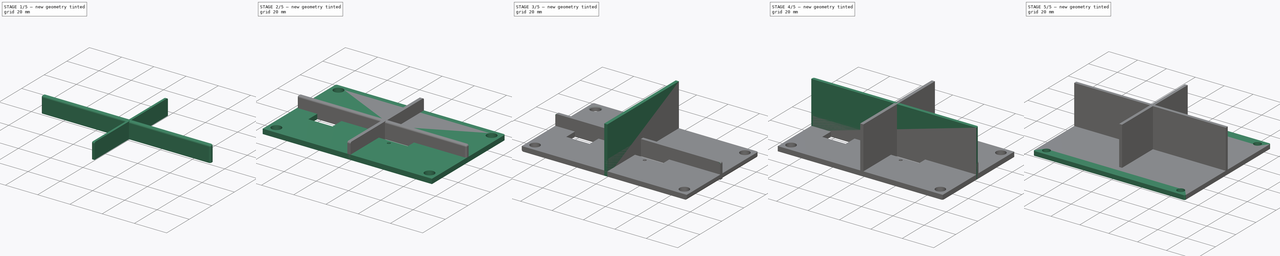
[diagram: build sequence overview — one tinted view per stage of 5, left to right]
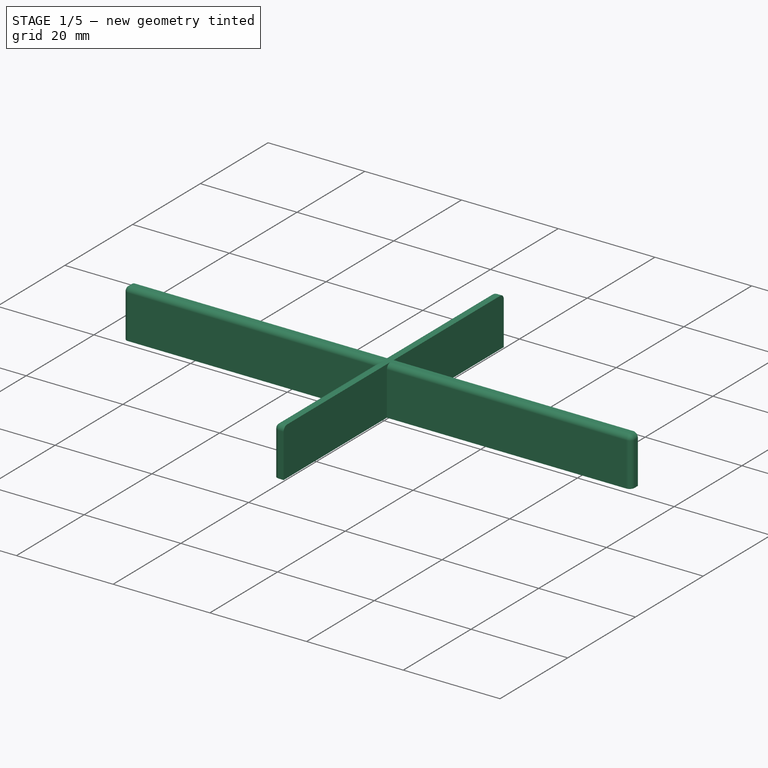
[diagram: stage 1 of 5 — iso view after this stage's code; geometry added in this stage tinted green]
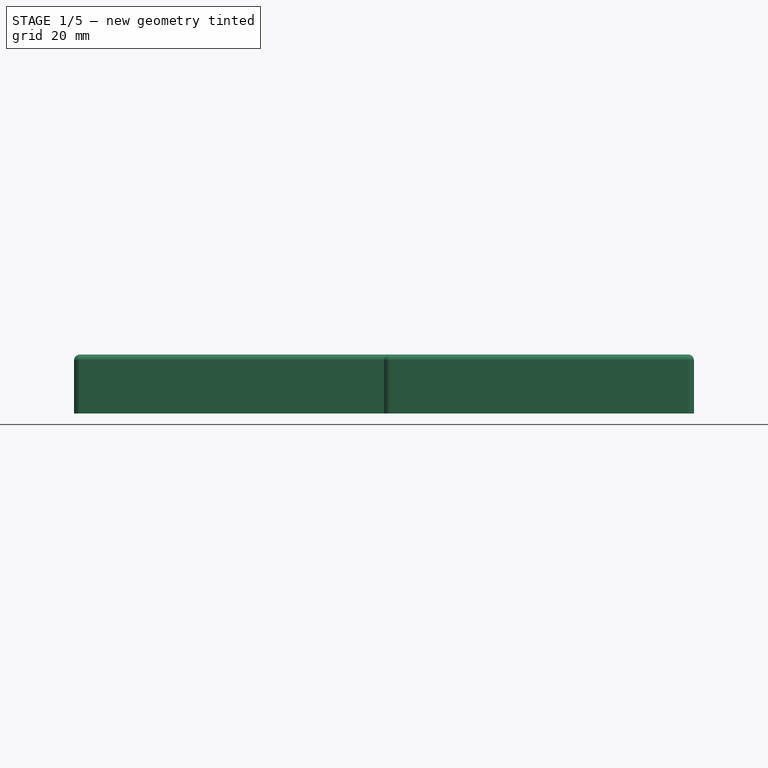
[diagram: stage 1 of 5 — front view after this stage's code; geometry added in this stage tinted green]
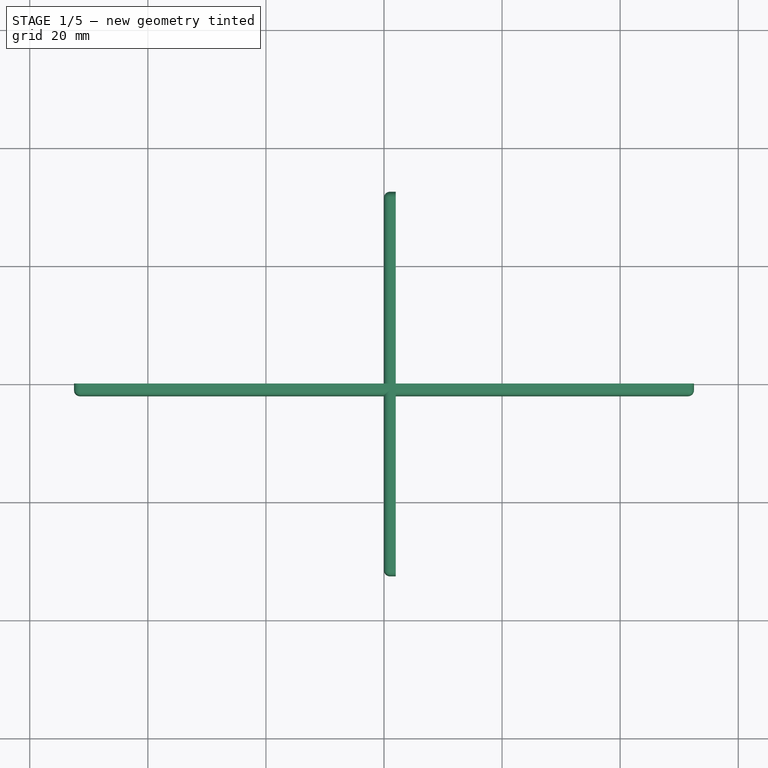
[diagram: stage 1 of 5 — top view after this stage's code; geometry added in this stage tinted green]
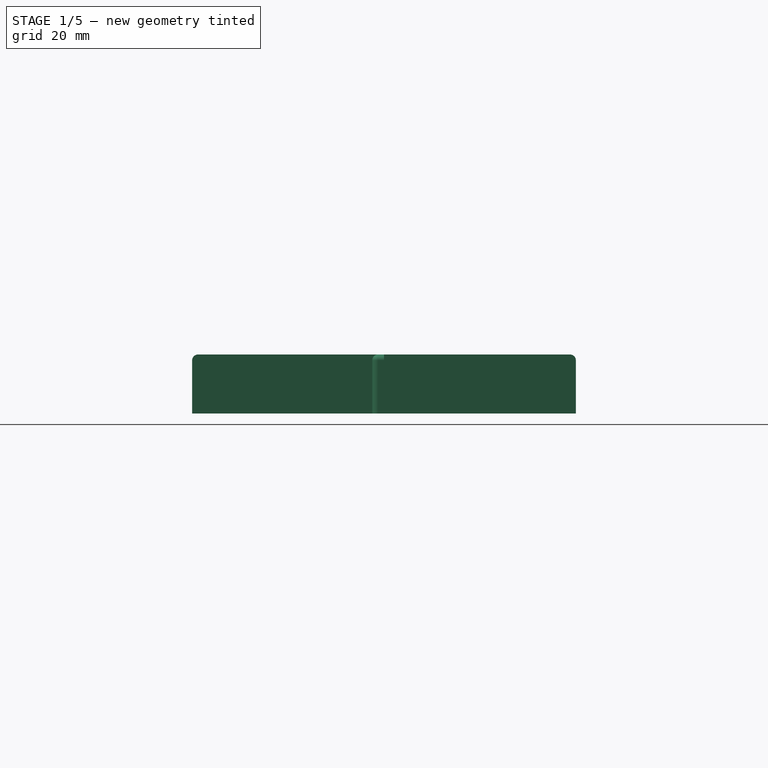
[diagram: stage 1 of 5 — right view after this stage's code; geometry added in this stage tinted green]
FCSTD DOCUMENT  (FreeCAD 0.19R24291 (Git))
Label: HW_2+
License: All rights reserved
LicenseURL: http://en.wikipedia.org/wiki/All_rights_reserved
objects: PartDesign::Fillet×28, Sketcher::SketchObject×10, PartDesign::Pad×10, PartDesign::Body×10
note: 96 computed .brp shape members not serialized (recipe doc carries the construction recipe); baked Part::Feature solids carry a one-line shape summary decoded from their .brp

FEATURE [Sketcher::SketchObject] Sketch007
  FullyConstrained = true
  MapMode = 5
  Placement = pos=(0,0,0) rot=(1,0,0;1.5708rad)
  sketch-geometry (4):
    g0: LineSegment StartX=-52.5 StartY=10 StartZ=0 EndX=52.5 EndY=10 EndZ=0
    g1: LineSegment StartX=52.5 StartY=10 StartZ=0 EndX=52.5 EndY=0 EndZ=0
    g2: LineSegment StartX=52.5 StartY=0 StartZ=0 EndX=-52.5 EndY=0 EndZ=0
    g3: LineSegment StartX=-52.5 StartY=0 StartZ=0 EndX=-52.5 EndY=10 EndZ=0
  constraints (11):
    c: Coincident(g0,g1)
    c: Coincident(g1,g2)
    c: Coincident(g2,g3)
    c: Coincident(g3,g0)
    c: Horizontal(g0)
    c: Vertical(g1)
    c: Vertical(g3)
    c: PointOnObject(g1,g-1)
    c: DistanceY(g3,g3) = 10
    c: DistanceX(g0,g0) = 105
    c: Symmetric(g1,g2,g-2)
FEATURE [PartDesign::Pad] Pad006
  Direction = (1,0,1)
  Length = 2
  Length2 = 100
  Placement = pos=(0,0,0) rot=(1,0,0;1.5708rad)
  Profile = -> Sketch007
  Type = 0
FEATURE [Sketcher::SketchObject] Sketch009
  FullyConstrained = true
  MapMode = 5
  Placement = pos=(0,0,0) rot=(0.57735,0.57735,0.57735;2.0944rad)
  Support = -> [YZ_Plane008]
  sketch-geometry (4):
    g0: LineSegment StartX=-32.5 StartY=10 StartZ=0 EndX=32.5 EndY=10 EndZ=0
    g1: LineSegment StartX=32.5 StartY=10 StartZ=0 EndX=32.5 EndY=0 EndZ=0
    g2: LineSegment StartX=32.5 StartY=0 StartZ=0 EndX=-32.5 EndY=-2e-16 EndZ=0
    g3: LineSegment StartX=-32.5 StartY=-2e-16 StartZ=0 EndX=-32.5 EndY=10 EndZ=0
  constraints (11):
    c: Coincident(g0,g1)
    c: Coincident(g1,g2)
    c: Coincident(g2,g3)
    c: Coincident(g3,g0)
    c: Horizontal(g0)
    c: Vertical(g1)
    c: Vertical(g3)
    c: DistanceX(g0,g0) = 65
    c: DistanceY(g1,g1) = 10
    c: Symmetric(g2,g1,g-2)
    c: PointOnObject(g1,g-1)
FEATURE [PartDesign::Pad] Pad008
  Direction = (1,1,1)
  Length = 2
  Length2 = 100
  Placement = pos=(0,0,0) rot=(0.57735,0.57735,0.57735;2.0944rad)
  Profile = -> Sketch009
  Type = 0
FEATURE [PartDesign::Body] Body003
  Group = -> [Sketch004,Pad003,Fillet004,Fillet005]
  Origin = -> Origin003
  Placement = pos=(50.5,0,0) rot=(0,0,1;0rad)
  Tip = -> Fillet005
FEATURE [PartDesign::Fillet] Fillet006
  Base = -> Pad006 [Edge7]
  BaseFeature = -> Pad006
  Placement = pos=(0,0,0) rot=(1,0,0;1.5708rad)
  Radius = 1
  SupportTransform = false
FEATURE [PartDesign::Fillet] Fillet013
  Base = -> Pad008 [Edge6]
  BaseFeature = -> Pad008
  Placement = pos=(0,0,0) rot=(0.57735,0.57735,0.57735;2.0944rad)
  Radius = 1
  SupportTransform = false
FEATURE [PartDesign::Fillet] Fillet019
  Base = -> Fillet006 [Edge13]
  BaseFeature = -> Fillet006
  Placement = pos=(0,0,0) rot=(1,0,0;1.5708rad)
  Radius = 1
  SupportTransform = false
FEATURE [PartDesign::Fillet] Fillet020
  Base = -> Fillet013 [Edge13]
  BaseFeature = -> Fillet013
  Placement = pos=(0,0,0) rot=(0.57735,0.57735,0.57735;2.0944rad)
  Radius = 1
  SupportTransform = false
FEATURE [PartDesign::Body] Body009
  Group = -> [Sketch010,Pad009,Fillet007,Fillet011,Fillet025]
  Origin = -> Origin009
  Placement = pos=(50.5,0,36) rot=(0,0,1;0rad)
  Tip = -> Fillet025
FEATURE [PartDesign::Fillet] Fillet026
  Base = -> Fillet019 [Edge1]
  BaseFeature = -> Fillet019
  Placement = pos=(0,0,0) rot=(1,0,0;1.5708rad)
  Radius = 1
  SupportTransform = false
FEATURE [PartDesign::Body] Body006
  Group = -> [Sketch007,Pad006,Fillet006,Fillet019,Fillet026]
  Origin = -> Origin006
  Placement = pos=(0,-30.5,36) rot=(0,0,1;0rad)
  Tip = -> Fillet026
FEATURE [PartDesign::Fillet] Fillet027
  Base = -> Fillet020 [Edge1]
  BaseFeature = -> Fillet020
  Placement = pos=(0,0,0) rot=(0.57735,0.57735,0.57735;2.0944rad)
  Radius = 1
  SupportTransform = false
FEATURE [PartDesign::Body] Body008
  Group = -> [Sketch009,Pad008,Fillet013,Fillet020,Fillet027]
  Origin = -> Origin008
  Placement = pos=(-52.5,0,36) rot=(0,0,1;0rad)
  Tip = -> Fillet027
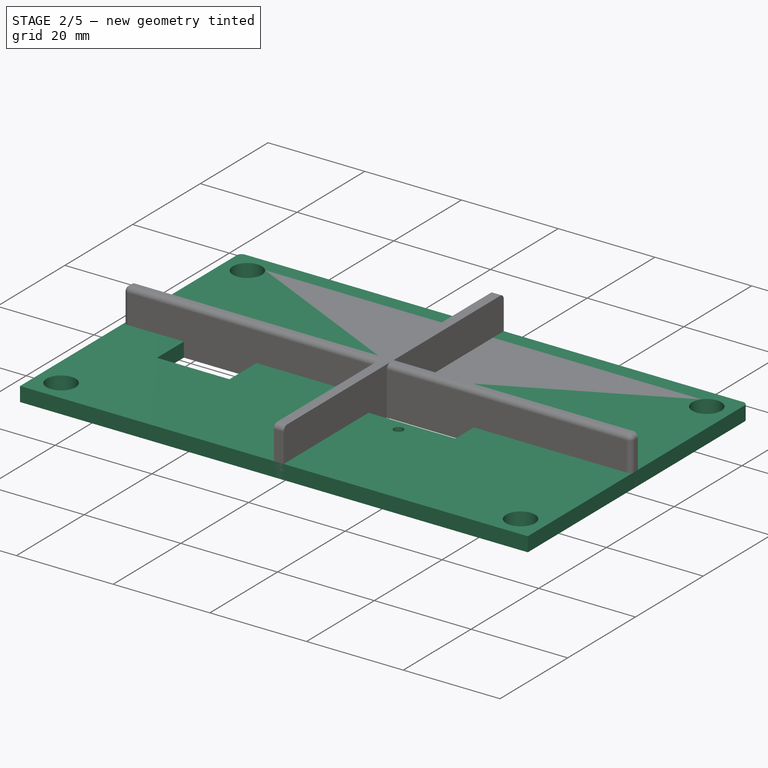
[diagram: stage 2 of 5 — iso view after this stage's code; geometry added in this stage tinted green]
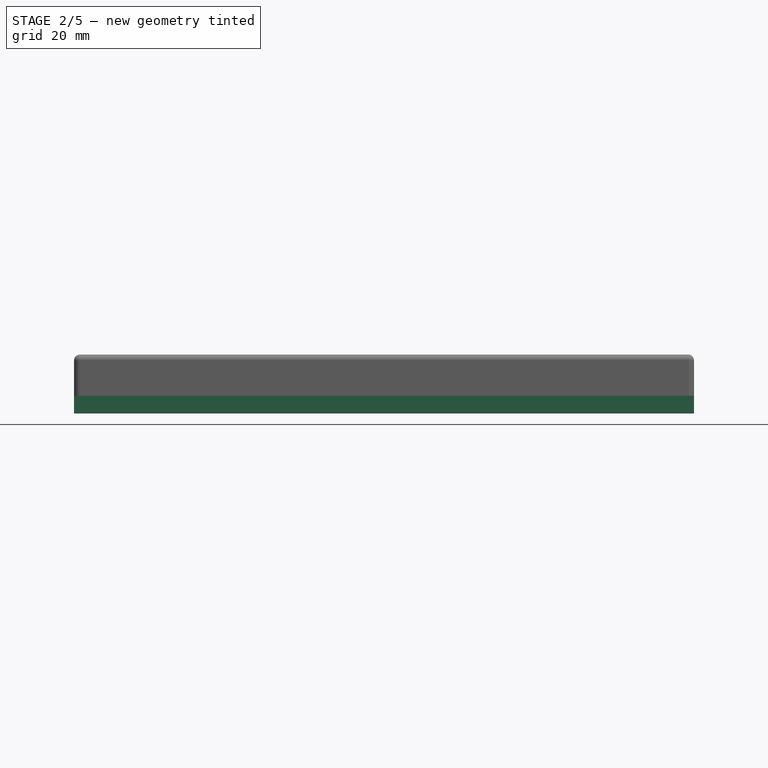
[diagram: stage 2 of 5 — front view after this stage's code; geometry added in this stage tinted green]
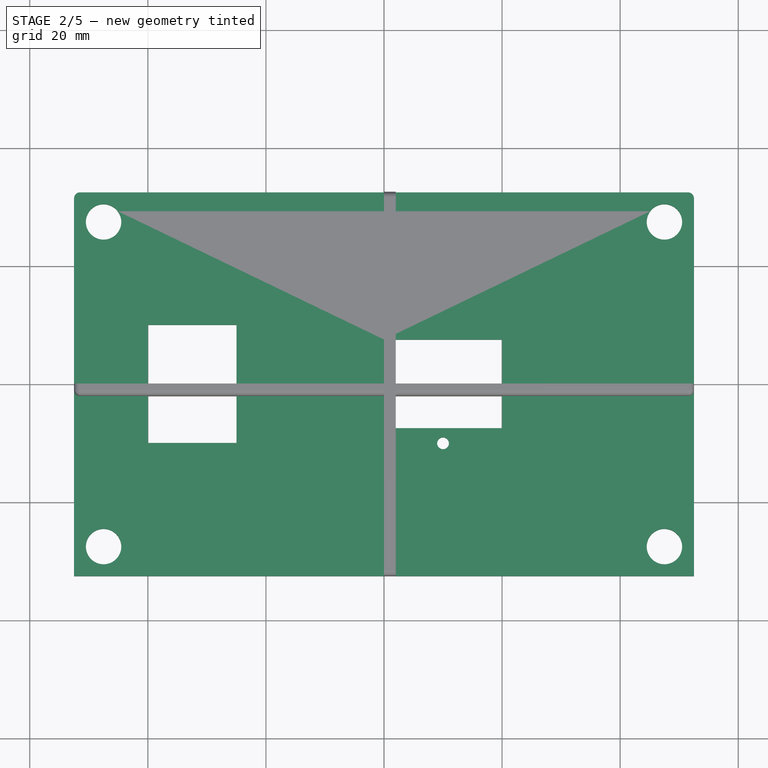
[diagram: stage 2 of 5 — top view after this stage's code; geometry added in this stage tinted green]
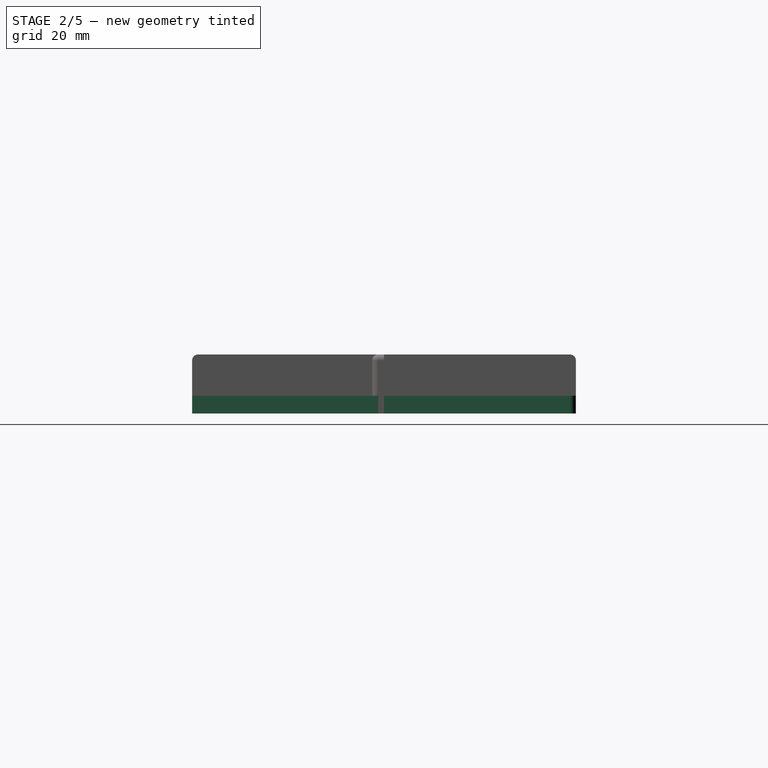
[diagram: stage 2 of 5 — right view after this stage's code; geometry added in this stage tinted green]
FEATURE [Sketcher::SketchObject] Sketch006
  FullyConstrained = false
  MapMode = 5
  Support = -> [XY_Plane005]
  sketch-geometry (17):
    g0: LineSegment StartX=-52.5 StartY=32.5 StartZ=0 EndX=52.5 EndY=32.5 EndZ=0
    g1: LineSegment StartX=52.5 StartY=32.5 StartZ=0 EndX=52.5 EndY=-32.5 EndZ=0
    g2: LineSegment StartX=52.5 StartY=-32.5 StartZ=0 EndX=-52.5 EndY=-32.5 EndZ=0
    g3: LineSegment StartX=-52.5 StartY=-32.5 StartZ=0 EndX=-52.5 EndY=32.5 EndZ=0
    g4: Circle CenterX=-47.5 CenterY=27.5 CenterZ=0 NormalX=0 NormalY=0 NormalZ=1 AngleXU=0 Radius=3
    g5: Circle CenterX=47.5 CenterY=27.5 CenterZ=0 NormalX=0 NormalY=0 NormalZ=1 AngleXU=0 Radius=3
    g6: Circle CenterX=-47.5 CenterY=-27.5 CenterZ=0 NormalX=0 NormalY=0 NormalZ=1 AngleXU=0 Radius=3
    g7: Circle CenterX=47.5 CenterY=-27.5 CenterZ=0 NormalX=0 NormalY=0 NormalZ=1 AngleXU=0 Radius=3
    g8: LineSegment StartX=-39.9893 StartY=10.0676 StartZ=0 EndX=-24.9893 EndY=10.0676 EndZ=0
    g9: LineSegment StartX=-24.9893 StartY=10.0676 StartZ=0 EndX=-24.9893 EndY=-9.93244 EndZ=0
    g10: LineSegment StartX=-24.9893 StartY=-9.93244 StartZ=0 EndX=-39.9893 EndY=-9.93244 EndZ=0
    g11: LineSegment StartX=-39.9893 StartY=-9.93244 StartZ=0 EndX=-39.9893 EndY=10.0676 EndZ=0
    g12: LineSegment StartX=0 StartY=7.56637 StartZ=0 EndX=20 EndY=7.56637 EndZ=0
    g13: LineSegment StartX=20 StartY=7.56637 StartZ=0 EndX=20 EndY=-7.43363 EndZ=0
    g14: LineSegment StartX=20 StartY=-7.43363 StartZ=0 EndX=0 EndY=-7.43363 EndZ=0
    g15: LineSegment StartX=0 StartY=-7.43363 StartZ=0 EndX=0 EndY=7.56637 EndZ=0
    g16: Circle CenterX=10 CenterY=-10 CenterZ=0 NormalX=0 NormalY=0 NormalZ=1 AngleXU=0 Radius=1
  constraints (45):
    c: Coincident(g0,g1)
    c: Coincident(g1,g2)
    c: Coincident(g2,g3)
    c: Coincident(g3,g0)
    c: Horizontal(g0)
    c: Vertical(g3)
    c: DistanceX(g0,g0) = 105
    c: DistanceY(g1,g1) = 65
    c: Symmetric(g1,g2,g-2)
    c: Symmetric(g0,g1,g-1)
    c: Radius(g4) = 3
    c: DistanceY(g4,g0) = 5
    c: DistanceX(g0,g4) = 5
    c: DistanceX(g5,g0) = 5
    c: DistanceY(g5,g0) = 5
    c: Radius(g5) = 3
    c: Radius(g6) = 3
    c: Radius(g7) = 3
    c: DistanceX(g2,g6) = 5
    c: DistanceX(g7,g1) = 5
    c: DistanceY(g1,g7) = 5
    c: DistanceY(g2,g6) = 5
    c: Coincident(g8,g9)
    c: Coincident(g9,g10)
    c: Coincident(g10,g11)
    c: Coincident(g11,g8)
    c: Horizontal(g8)
    c: Horizontal(g10)
    c: Vertical(g9)
    c: Vertical(g11)
    c: DistanceY(g9,g9) = 20
    c: DistanceX(g8,g8) = 15
    c: Coincident(g12,g13)
    c: Coincident(g13,g14)
    c: Coincident(g14,g15)
    c: Coincident(g15,g12)
    c: Horizontal(g12)
    c: Vertical(g13)
    c: Vertical(g15)
    c: PointOnObject(g12,g-2)
    c: DistanceY(g13,g13) = 15
    c: DistanceX(g12,g12) = 20
    c: Diameter(g16) = 2
    c: DistanceY(g16,g-1) = 10
    c: DistanceX(g-1,g16) = 10
FEATURE [PartDesign::Pad] Pad005
  Direction = (1,1,1)
  Length = 3
  Length2 = 100
  Profile = -> Sketch006
  Type = 0
FEATURE [Sketcher::SketchObject] Sketch010
  FullyConstrained = true
  MapMode = 5
  Placement = pos=(0,0,0) rot=(0.57735,0.57735,0.57735;2.0944rad)
  Support = -> [YZ_Plane009]
  sketch-geometry (4):
    g0: LineSegment StartX=-32.5 StartY=10 StartZ=0 EndX=32.5 EndY=10 EndZ=0
    g1: LineSegment StartX=32.5 StartY=10 StartZ=0 EndX=32.5 EndY=0 EndZ=0
    g2: LineSegment StartX=32.5 StartY=0 StartZ=0 EndX=-32.5 EndY=-2e-16 EndZ=0
    g3: LineSegment StartX=-32.5 StartY=-2e-16 StartZ=0 EndX=-32.5 EndY=10 EndZ=0
  constraints (11):
    c: Coincident(g0,g1)
    c: Coincident(g1,g2)
    c: Coincident(g2,g3)
    c: Coincident(g3,g0)
    c: Horizontal(g0)
    c: Vertical(g1)
    c: Vertical(g3)
    c: DistanceX(g0,g0) = 65
    c: DistanceY(g1,g1) = 10
    c: Symmetric(g2,g1,g-2)
    c: PointOnObject(g1,g-1)
FEATURE [PartDesign::Pad] Pad009
  Direction = (1,1,1)
  Length = 2
  Length2 = 100
  Placement = pos=(0,0,0) rot=(0.57735,0.57735,0.57735;2.0944rad)
  Profile = -> Sketch010
  Type = 0
FEATURE [PartDesign::Fillet] Fillet007
  Base = -> Pad009 [Edge12]
  BaseFeature = -> Pad009
  Placement = pos=(0,0,0) rot=(0.57735,0.57735,0.57735;2.0944rad)
  Radius = 1
  SupportTransform = false
FEATURE [PartDesign::Fillet] Fillet010
  Base = -> Pad005 [Edge2]
  BaseFeature = -> Pad005
  Radius = 1
  SupportTransform = false
FEATURE [PartDesign::Fillet] Fillet011
  Base = -> Fillet007 [Edge13]
  BaseFeature = -> Fillet007
  Placement = pos=(0,0,0) rot=(0.57735,0.57735,0.57735;2.0944rad)
  Radius = 1
  SupportTransform = false
FEATURE [PartDesign::Fillet] Fillet015
  Base = -> Fillet010 [Edge3]
  BaseFeature = -> Fillet010
  Radius = 1
  SupportTransform = false
FEATURE [PartDesign::Body] Body005  label="ฝา"
  Group = -> [Sketch006,Pad005,Fillet008,Fillet010,Fillet015,Fillet018,Fillet022,Fillet024]
  Origin = -> Origin005
  Placement = pos=(0,0,43) rot=(0,0,1;0rad)
  Tip = -> Fillet024
FEATURE [PartDesign::Fillet] Fillet025
  Base = -> Fillet011 [Edge1]
  BaseFeature = -> Fillet011
  Placement = pos=(0,0,0) rot=(0.57735,0.57735,0.57735;2.0944rad)
  Radius = 1
  SupportTransform = false
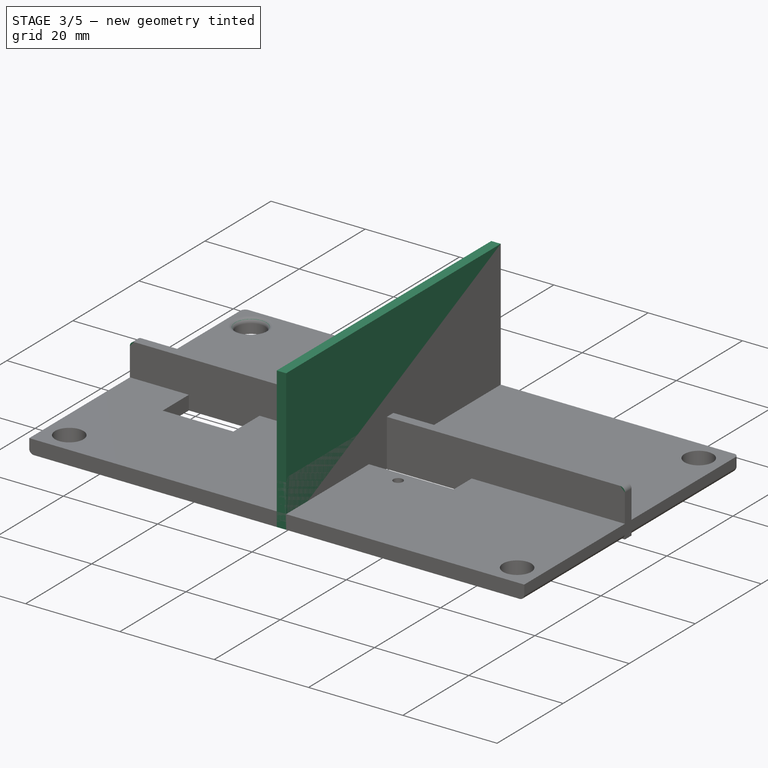
[diagram: stage 3 of 5 — iso view after this stage's code; geometry added in this stage tinted green]
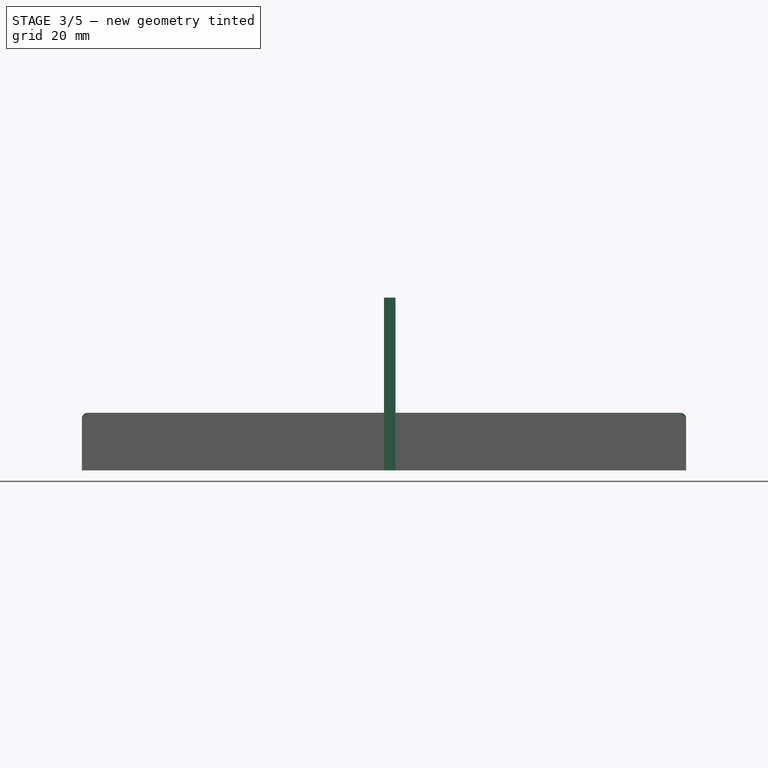
[diagram: stage 3 of 5 — front view after this stage's code; geometry added in this stage tinted green]
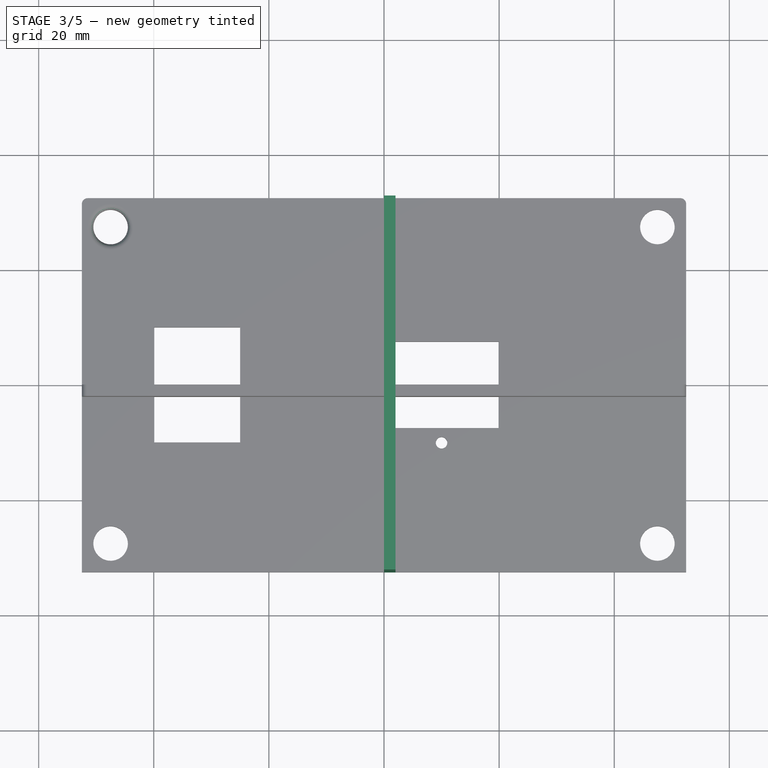
[diagram: stage 3 of 5 — top view after this stage's code; geometry added in this stage tinted green]
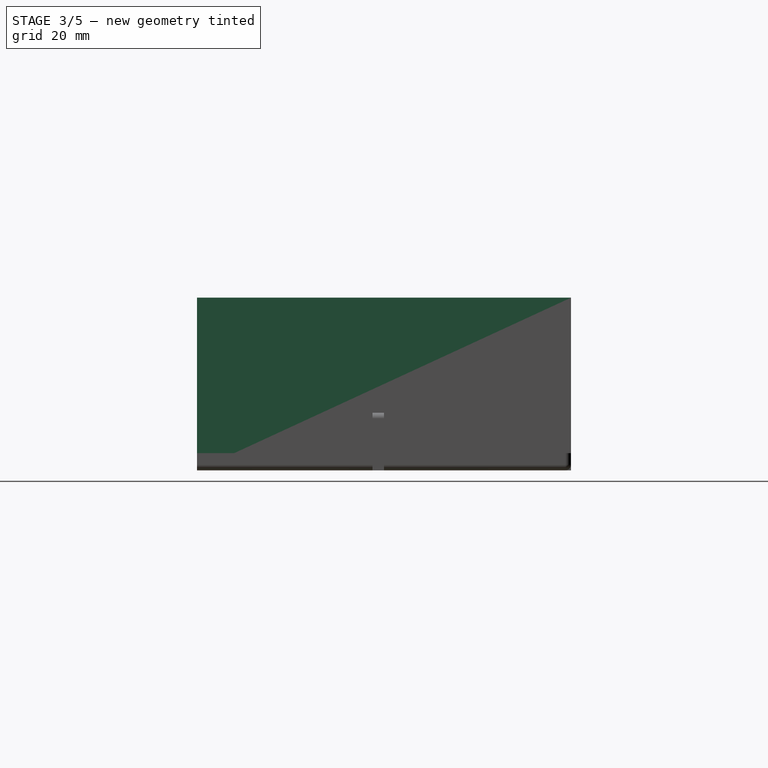
[diagram: stage 3 of 5 — right view after this stage's code; geometry added in this stage tinted green]
FEATURE [Sketcher::SketchObject] Sketch005
  FullyConstrained = true
  MapMode = 5
  Placement = pos=(0,0,0) rot=(0.57735,0.57735,0.57735;2.0944rad)
  Support = -> [YZ_Plane004]
  sketch-geometry (4):
    g0: LineSegment StartX=-32.5 StartY=30 StartZ=0 EndX=32.5 EndY=30 EndZ=0
    g1: LineSegment StartX=32.5 StartY=30 StartZ=0 EndX=32.5 EndY=0 EndZ=0
    g2: LineSegment StartX=32.5 StartY=0 StartZ=0 EndX=-32.5 EndY=1e-16 EndZ=0
    g3: LineSegment StartX=-32.5 StartY=1e-16 StartZ=0 EndX=-32.5 EndY=30 EndZ=0
  constraints (11):
    c: Coincident(g0,g1)
    c: Coincident(g1,g2)
    c: Coincident(g2,g3)
    c: Coincident(g3,g0)
    c: Horizontal(g0)
    c: Vertical(g1)
    c: Vertical(g3)
    c: DistanceX(g0,g0) = 65
    c: DistanceY(g1,g1) = 30
    c: Symmetric(g2,g1,g-2)
    c: PointOnObject(g1,g-1)
FEATURE [PartDesign::Pad] Pad004
  Direction = (1,1,1)
  Length = 2
  Length2 = 100
  Placement = pos=(0,0,0) rot=(0.57735,0.57735,0.57735;2.0944rad)
  Profile = -> Sketch005
  Type = 0
FEATURE [Sketcher::SketchObject] Sketch008
  FullyConstrained = true
  MapMode = 5
  Placement = pos=(0,0,0) rot=(1,0,0;1.5708rad)
  sketch-geometry (4):
    g0: LineSegment StartX=-52.5 StartY=10 StartZ=0 EndX=52.5 EndY=10 EndZ=0
    g1: LineSegment StartX=52.5 StartY=10 StartZ=0 EndX=52.5 EndY=0 EndZ=0
    g2: LineSegment StartX=52.5 StartY=0 StartZ=0 EndX=-52.5 EndY=0 EndZ=0
    g3: LineSegment StartX=-52.5 StartY=0 StartZ=0 EndX=-52.5 EndY=10 EndZ=0
  constraints (11):
    c: Coincident(g0,g1)
    c: Coincident(g1,g2)
    c: Coincident(g2,g3)
    c: Coincident(g3,g0)
    c: Horizontal(g0)
    c: Vertical(g1)
    c: Vertical(g3)
    c: PointOnObject(g1,g-1)
    c: DistanceY(g3,g3) = 10
    c: DistanceX(g0,g0) = 105
    c: Symmetric(g1,g2,g-2)
FEATURE [PartDesign::Pad] Pad007
  Direction = (1,0,1)
  Length = 2
  Length2 = 100
  Placement = pos=(0,0,0) rot=(1,0,0;1.5708rad)
  Profile = -> Sketch008
  Type = 0
FEATURE [PartDesign::Fillet] Fillet012
  Base = -> Pad007 [Edge6]
  BaseFeature = -> Pad007
  Placement = pos=(0,0,0) rot=(1,0,0;1.5708rad)
  Radius = 1
  SupportTransform = false
FEATURE [PartDesign::Fillet] Fillet014
  Base = -> Fillet012 [Edge13]
  BaseFeature = -> Fillet012
  Placement = pos=(0,0,0) rot=(1,0,0;1.5708rad)
  Radius = 1
  SupportTransform = false
FEATURE [PartDesign::Body] Body002
  Group = -> [Sketch003,Pad002,Fillet009,Fillet017]
  Origin = -> Origin002
  Placement = pos=(0,32.5,0) rot=(0,0,1;0rad)
  Tip = -> Fillet017
FEATURE [PartDesign::Fillet] Fillet018
  Base = -> Fillet015 [Edge41]
  BaseFeature = -> Fillet015
  Radius = 1
  SupportTransform = false
FEATURE [PartDesign::Body] Body004
  Group = -> [Sketch005,Pad004,Fillet016,Fillet021]
  Origin = -> Origin004
  Placement = pos=(-52.5,0,0) rot=(0,0,1;0rad)
  Tip = -> Fillet021
FEATURE [PartDesign::Fillet] Fillet022
  Base = -> Fillet018 [Edge27]
  BaseFeature = -> Fillet018
  Radius = 1
  SupportTransform = false
FEATURE [PartDesign::Fillet] Fillet023
  Base = -> Fillet014 [Edge1]
  BaseFeature = -> Fillet014
  Placement = pos=(0,0,0) rot=(1,0,0;1.5708rad)
  Radius = 1
  SupportTransform = false
FEATURE [PartDesign::Body] Body007
  Group = -> [Sketch008,Pad007,Fillet012,Fillet014,Fillet023]
  Origin = -> Origin007
  Placement = pos=(0,32.5,36) rot=(0,0,1;0rad)
  Tip = -> Fillet023
FEATURE [PartDesign::Fillet] Fillet024
  Base = -> Fillet022 [Edge36]
  BaseFeature = -> Fillet022
  Radius = 1
  SupportTransform = false
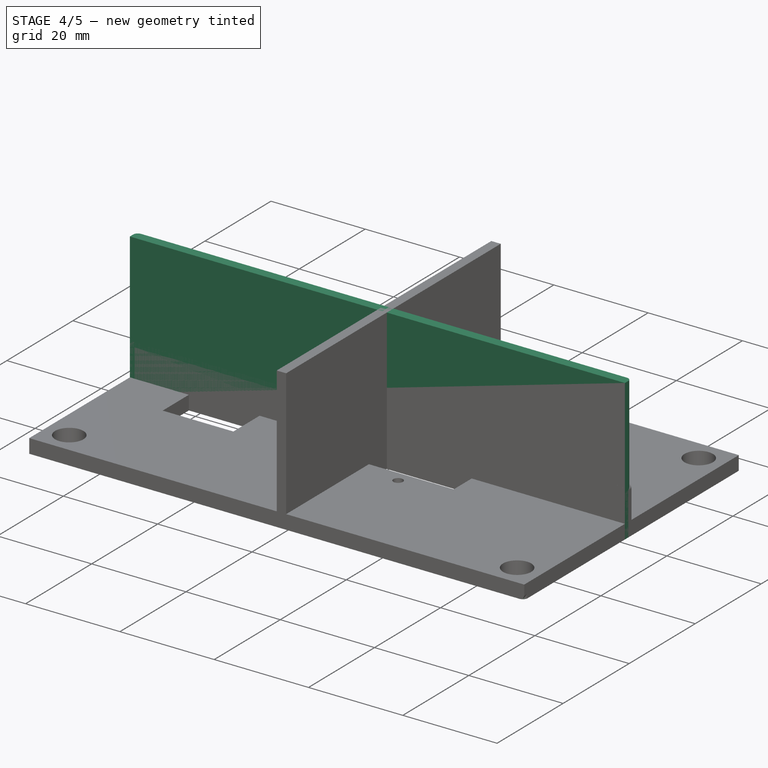
[diagram: stage 4 of 5 — iso view after this stage's code; geometry added in this stage tinted green]
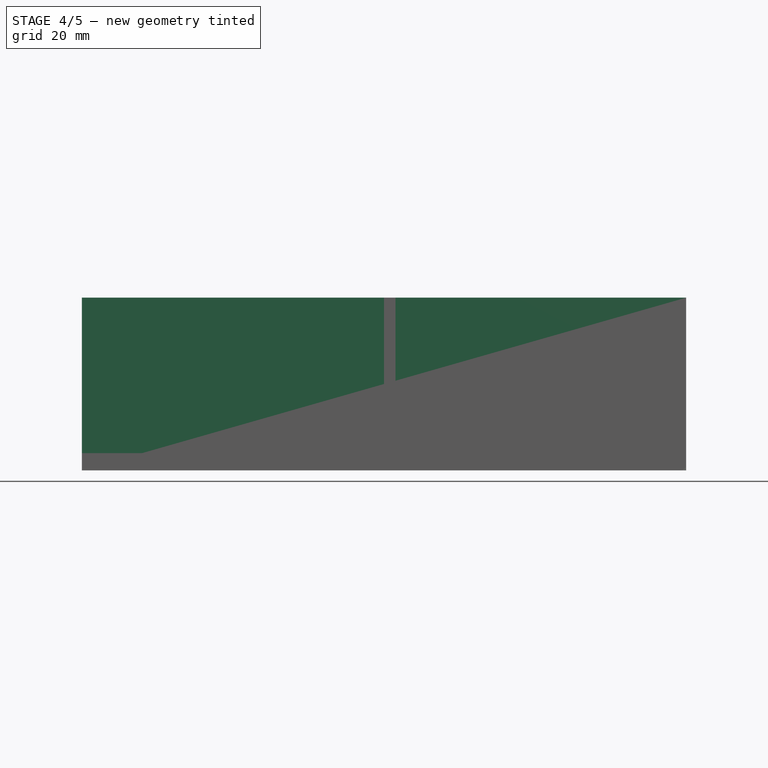
[diagram: stage 4 of 5 — front view after this stage's code; geometry added in this stage tinted green]
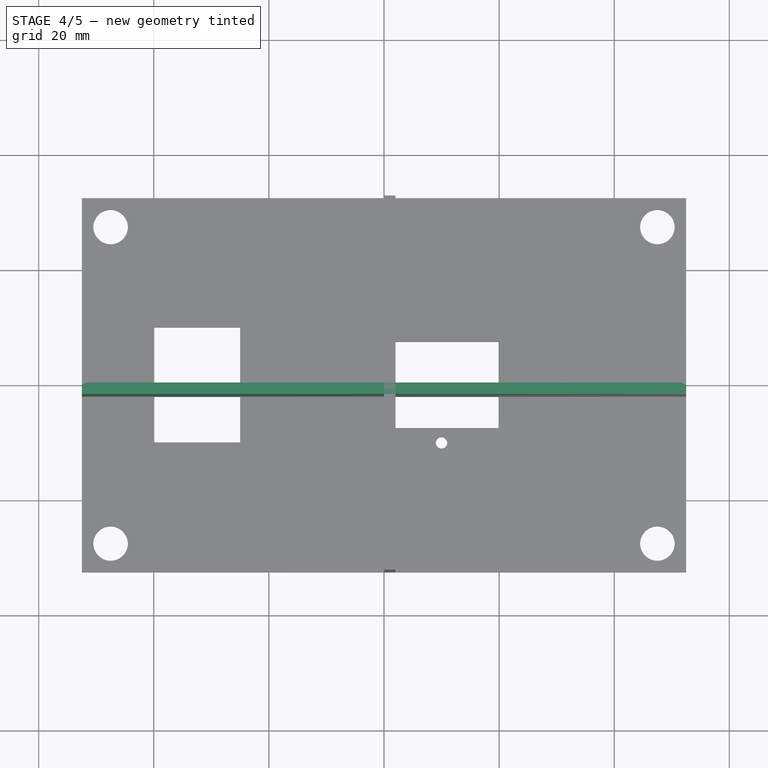
[diagram: stage 4 of 5 — top view after this stage's code; geometry added in this stage tinted green]
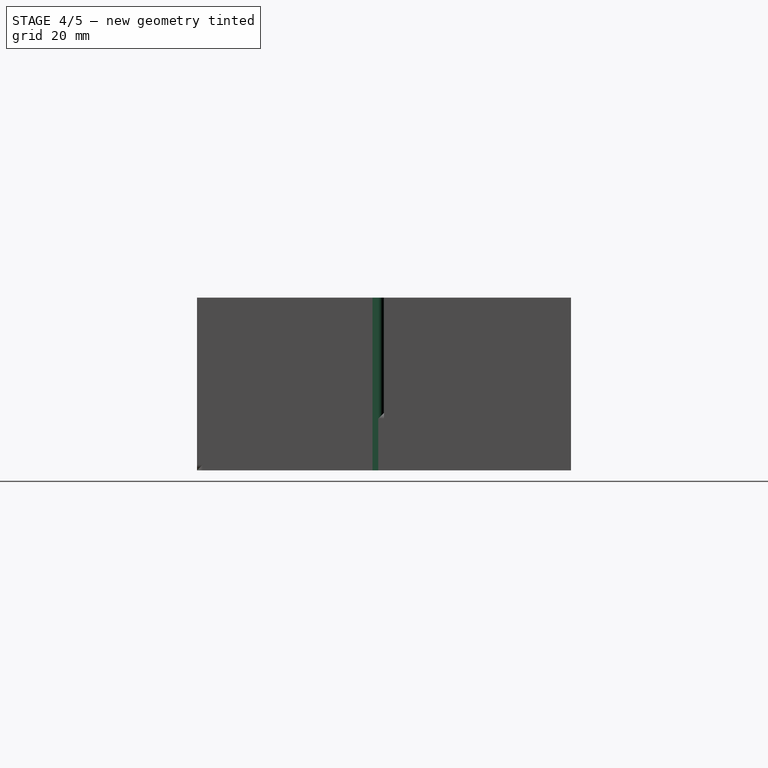
[diagram: stage 4 of 5 — right view after this stage's code; geometry added in this stage tinted green]
FEATURE [Sketcher::SketchObject] Sketch003
  FullyConstrained = true
  MapMode = 5
  Placement = pos=(0,0,0) rot=(1,0,0;1.5708rad)
  sketch-geometry (4):
    g0: LineSegment StartX=-52.5 StartY=30 StartZ=0 EndX=52.5 EndY=30 EndZ=0
    g1: LineSegment StartX=52.5 StartY=30 StartZ=0 EndX=52.5 EndY=0 EndZ=0
    g2: LineSegment StartX=52.5 StartY=0 StartZ=0 EndX=-52.5 EndY=0 EndZ=0
    g3: LineSegment StartX=-52.5 StartY=0 StartZ=0 EndX=-52.5 EndY=30 EndZ=0
  constraints (11):
    c: Coincident(g0,g1)
    c: Coincident(g1,g2)
    c: Coincident(g2,g3)
    c: Coincident(g3,g0)
    c: Horizontal(g0)
    c: Vertical(g1)
    c: Vertical(g3)
    c: PointOnObject(g1,g-1)
    c: DistanceY(g3,g3) = 30
    c: DistanceX(g0,g0) = 105
    c: Symmetric(g1,g2,g-2)
FEATURE [PartDesign::Pad] Pad002
  Direction = (1,0,1)
  Length = 2
  Length2 = 100
  Placement = pos=(0,0,0) rot=(1,0,0;1.5708rad)
  Profile = -> Sketch003
  Type = 0
FEATURE [Sketcher::SketchObject] Sketch004
  FullyConstrained = false
  MapMode = 5
  Placement = pos=(0,0,0) rot=(0.57735,0.57735,0.57735;2.0944rad)
  Support = -> [YZ_Plane003]
  sketch-geometry (9):
    g0: LineSegment StartX=-32.5 StartY=30 StartZ=0 EndX=32.5 EndY=30 EndZ=0
    g1: LineSegment StartX=32.5 StartY=30 StartZ=0 EndX=32.5 EndY=0 EndZ=0
    g2: LineSegment StartX=32.5 StartY=0 StartZ=0 EndX=-32.5 EndY=0 EndZ=0
    g3: LineSegment StartX=-32.5 StartY=0 StartZ=0 EndX=-32.5 EndY=30 EndZ=0
    g4: Circle CenterX=-14.5 CenterY=11 CenterZ=0 NormalX=0 NormalY=0 NormalZ=1 AngleXU=0 Radius=2.5
    g5: LineSegment StartX=-2.0102 StartY=14.4748 StartZ=0 EndX=9.9898 EndY=14.4748 EndZ=0
    g6: LineSegment StartX=9.9898 StartY=14.4748 StartZ=0 EndX=9.9898 EndY=9.97479 EndZ=0
    g7: LineSegment StartX=9.9898 StartY=9.97479 StartZ=0 EndX=-2.0102 EndY=9.97479 EndZ=0
    g8: LineSegment StartX=-2.0102 StartY=9.97479 StartZ=0 EndX=-2.0102 EndY=14.4748 EndZ=0
  constraints (24):
    c: Coincident(g0,g1)
    c: Coincident(g1,g2)
    c: Coincident(g2,g3)
    c: Coincident(g3,g0)
    c: Horizontal(g0)
    c: Vertical(g1)
    c: Vertical(g3)
    c: DistanceX(g0,g0) = 65
    c: DistanceY(g1,g1) = 30
    c: Symmetric(g2,g1,g-2)
    c: PointOnObject(g1,g-1)
    c: Diameter(g4) = 5
    c: DistanceX(g2,g4) = 18
    c: DistanceY(g2,g4) = 11
    c: Coincident(g5,g6)
    c: Coincident(g6,g7)
    c: Coincident(g7,g8)
    c: Coincident(g8,g5)
    c: Horizontal(g5)
    c: Horizontal(g7)
    c: Vertical(g6)
    c: Vertical(g8)
    c: DistanceX(g5,g5) = 12
    c: DistanceY(g8,g8) = 4.5
FEATURE [PartDesign::Pad] Pad003
  Direction = (1,1,1)
  Length = 2
  Length2 = 100
  Placement = pos=(0,0,0) rot=(0.57735,0.57735,0.57735;2.0944rad)
  Profile = -> Sketch004
  Type = 0
FEATURE [PartDesign::Fillet] Fillet008
  Base = -> Pad005 [Edge5]
  BaseFeature = -> Pad005
  Radius = 1
  SupportTransform = false
FEATURE [PartDesign::Fillet] Fillet009
  Base = -> Pad002 [Edge6]
  BaseFeature = -> Pad002
  Placement = pos=(0,0,0) rot=(1,0,0;1.5708rad)
  Radius = 1
  SupportTransform = false
FEATURE [PartDesign::Fillet] Fillet016
  Base = -> Pad004 [Edge6]
  BaseFeature = -> Pad004
  Placement = pos=(0,0,0) rot=(0.57735,0.57735,0.57735;2.0944rad)
  Radius = 1
  SupportTransform = false
FEATURE [PartDesign::Fillet] Fillet017
  Base = -> Fillet009 [Edge13]
  BaseFeature = -> Fillet009
  Placement = pos=(0,0,0) rot=(1,0,0;1.5708rad)
  Radius = 1
  SupportTransform = false
FEATURE [PartDesign::Fillet] Fillet021
  Base = -> Fillet016 [Edge13]
  BaseFeature = -> Fillet016
  Placement = pos=(0,0,0) rot=(0.57735,0.57735,0.57735;2.0944rad)
  Radius = 1
  SupportTransform = false
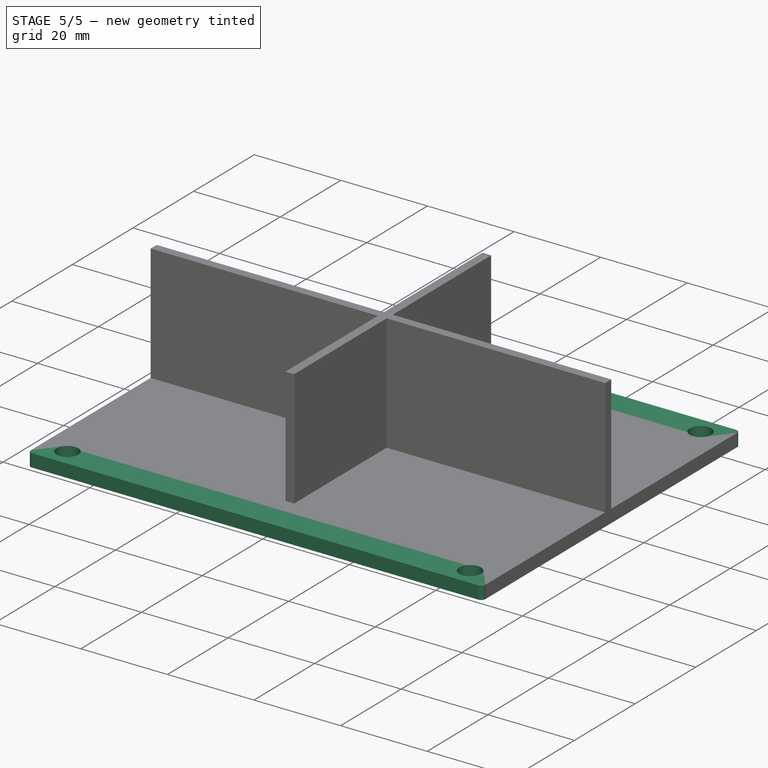
[diagram: stage 5 of 5 — iso view after this stage's code; geometry added in this stage tinted green]
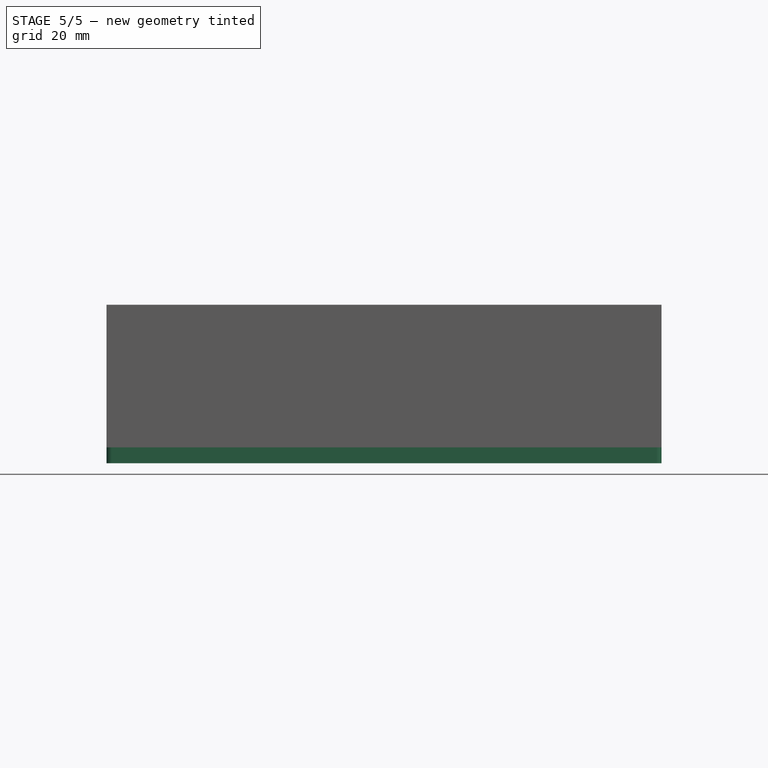
[diagram: stage 5 of 5 — front view after this stage's code; geometry added in this stage tinted green]
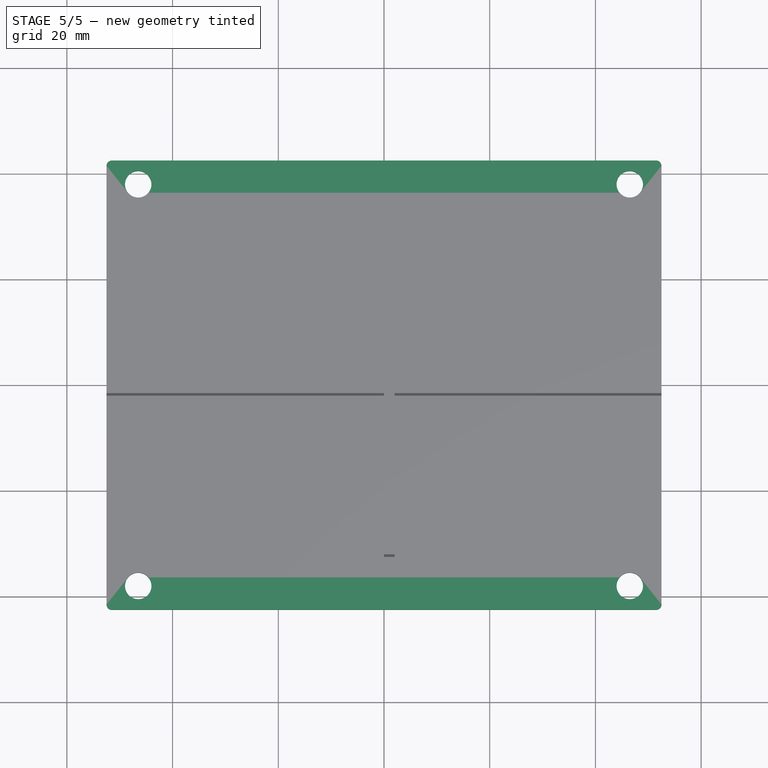
[diagram: stage 5 of 5 — top view after this stage's code; geometry added in this stage tinted green]
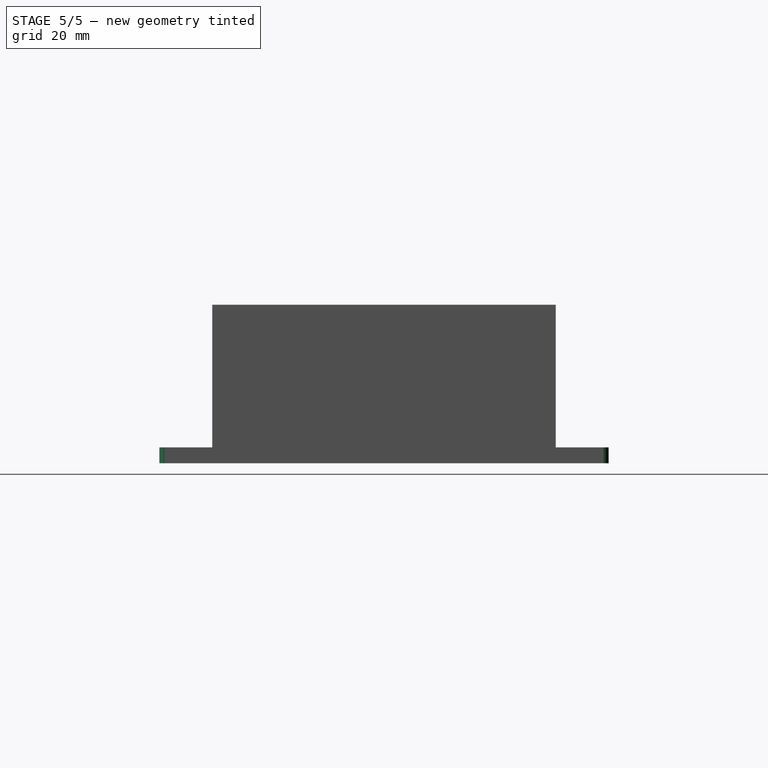
[diagram: stage 5 of 5 — right view after this stage's code; geometry added in this stage tinted green]
FEATURE [Sketcher::SketchObject] Sketch
  FullyConstrained = true
  MapMode = 5
  Support = -> [XY_Plane]
  sketch-geometry (8):
    g0: LineSegment StartX=-52.5 StartY=42.5 StartZ=0 EndX=52.5 EndY=42.5 EndZ=0
    g1: LineSegment StartX=52.5 StartY=42.5 StartZ=0 EndX=52.5 EndY=-42.5 EndZ=0
    g2: LineSegment StartX=52.5 StartY=-42.5 StartZ=0 EndX=-52.5 EndY=-42.5 EndZ=0
    g3: LineSegment StartX=-52.5 StartY=-42.5 StartZ=0 EndX=-52.5 EndY=42.5 EndZ=0
    g4: Circle CenterX=-46.5 CenterY=38 CenterZ=0 NormalX=0 NormalY=0 NormalZ=1 AngleXU=0 Radius=2.5
    g5: Circle CenterX=46.5 CenterY=38 CenterZ=0 NormalX=0 NormalY=0 NormalZ=1 AngleXU=0 Radius=2.5
    g6: Circle CenterX=-46.5 CenterY=-38 CenterZ=0 NormalX=0 NormalY=0 NormalZ=1 AngleXU=0 Radius=2.5
    g7: Circle CenterX=46.5 CenterY=-38 CenterZ=0 NormalX=0 NormalY=0 NormalZ=1 AngleXU=0 Radius=2.5
  constraints (22):
    c: Coincident(g0,g1)
    c: Coincident(g1,g2)
    c: Coincident(g2,g3)
    c: Coincident(g3,g0)
    c: Horizontal(g0)
    c: Vertical(g3)
    c: DistanceX(g0,g0) = 105
    c: DistanceY(g1,g1) = 85
    c: Symmetric(g2,g1,g-2)
    c: Symmetric(g0,g1,g-1)
    c: Diameter(g4) = 5
    c: DistanceX(g0,g4) = 6
    c: Equal(g4,g5)
    c: Equal(g5,g6)
    c: Equal(g6,g7)
    c: DistanceY(g4,g0) = 4.5
    c: DistanceX(g2,g6) = 6
    c: DistanceY(g2,g6) = 4.5
    c: DistanceX(g7,g1) = 6
    c: DistanceY(g1,g7) = 4.5
    c: DistanceY(g5,g0) = 4.5
    c: DistanceX(g5,g0) = 6
FEATURE [PartDesign::Pad] Pad
  Direction = (1,1,1)
  Length = 3
  Length2 = 100
  Profile = -> Sketch
  Type = 0
FEATURE [Sketcher::SketchObject] Sketch002
  FullyConstrained = true
  MapMode = 5
  Placement = pos=(0,0,0) rot=(1,0,0;1.5708rad)
  sketch-geometry (4):
    g0: LineSegment StartX=-52.5 StartY=30 StartZ=0 EndX=52.5 EndY=30 EndZ=0
    g1: LineSegment StartX=52.5 StartY=30 StartZ=0 EndX=52.5 EndY=0 EndZ=0
    g2: LineSegment StartX=52.5 StartY=0 StartZ=0 EndX=-52.5 EndY=0 EndZ=0
    g3: LineSegment StartX=-52.5 StartY=0 StartZ=0 EndX=-52.5 EndY=30 EndZ=0
  constraints (11):
    c: Coincident(g0,g1)
    c: Coincident(g1,g2)
    c: Coincident(g2,g3)
    c: Coincident(g3,g0)
    c: Horizontal(g0)
    c: Vertical(g1)
    c: Vertical(g3)
    c: PointOnObject(g1,g-1)
    c: DistanceY(g3,g3) = 30
    c: DistanceX(g0,g0) = 105
    c: Symmetric(g1,g2,g-2)
FEATURE [PartDesign::Pad] Pad001
  Direction = (1,0,1)
  Length = 2
  Length2 = 100
  Placement = pos=(0,0,0) rot=(1,0,0;1.5708rad)
  Profile = -> Sketch002
  Type = 0
FEATURE [PartDesign::Fillet] Fillet
  Base = -> Pad [Edge2]
  BaseFeature = -> Pad
  Radius = 1
  SupportTransform = false
FEATURE [PartDesign::Fillet] Fillet001
  Base = -> Fillet [Edge3,Edge23,Edge15]
  BaseFeature = -> Fillet
  Radius = 1
  SupportTransform = false
FEATURE [PartDesign::Body] Body
  Group = -> [Sketch,Pad,Fillet,Fillet001]
  Origin = -> Origin
  Tip = -> Fillet001
FEATURE [PartDesign::Fillet] Fillet002
  Base = -> Pad001 [Edge12]
  BaseFeature = -> Pad001
  Placement = pos=(0,0,0) rot=(1,0,0;1.5708rad)
  Radius = 1
  SupportTransform = false
FEATURE [PartDesign::Fillet] Fillet003
  Base = -> Fillet002 [Edge13]
  BaseFeature = -> Fillet002
  Placement = pos=(0,0,0) rot=(1,0,0;1.5708rad)
  Radius = 1
  SupportTransform = false
FEATURE [PartDesign::Body] Body001
  Group = -> [Sketch002,Pad001,Fillet002,Fillet003]
  Origin = -> Origin001
  Placement = pos=(0,-30.5,0) rot=(0,0,1;0rad)
  Tip = -> Fillet003
FEATURE [PartDesign::Fillet] Fillet004
  Base = -> Pad003 [Edge7]
  BaseFeature = -> Pad003
  Placement = pos=(0,0,0) rot=(0.57735,0.57735,0.57735;2.0944rad)
  Radius = 1
  SupportTransform = false
FEATURE [PartDesign::Fillet] Fillet005
  Base = -> Fillet004 [Edge18]
  BaseFeature = -> Fillet004
  Placement = pos=(0,0,0) rot=(0.57735,0.57735,0.57735;2.0944rad)
  Radius = 1
  SupportTransform = false
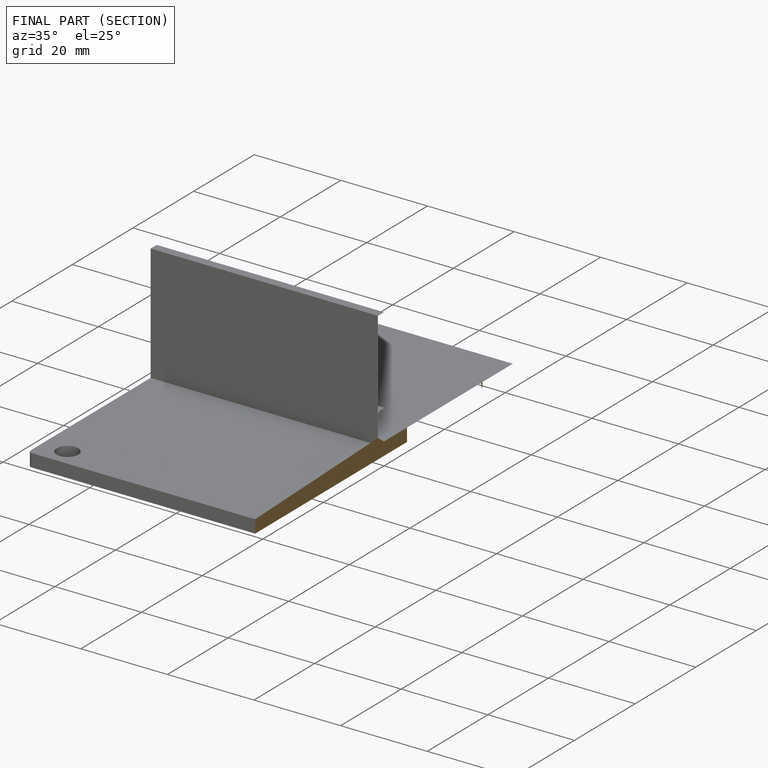
[diagram: finished part — half-section view (interior)]
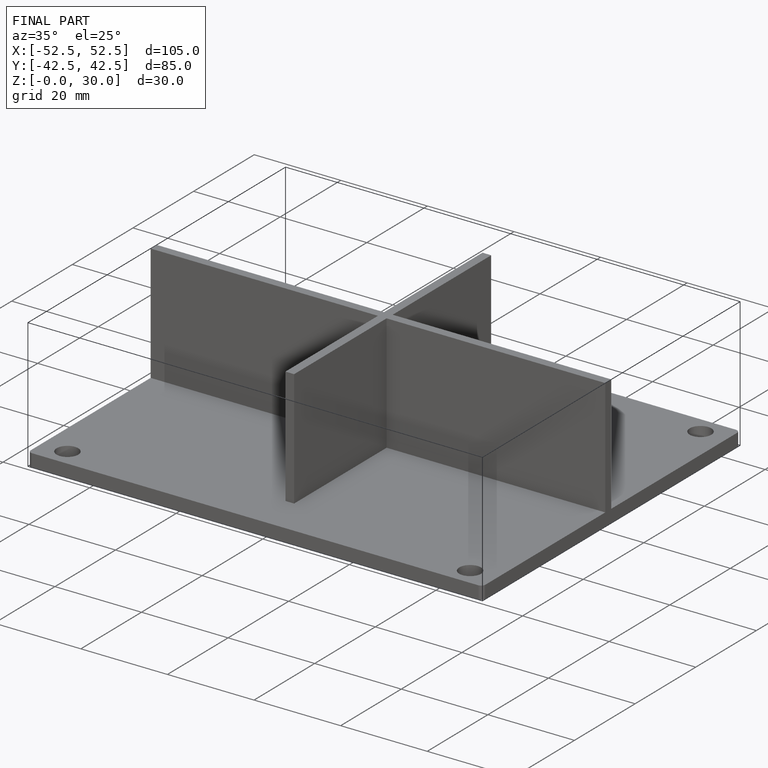
[diagram: finished part — iso view with bounding-box wireframe]
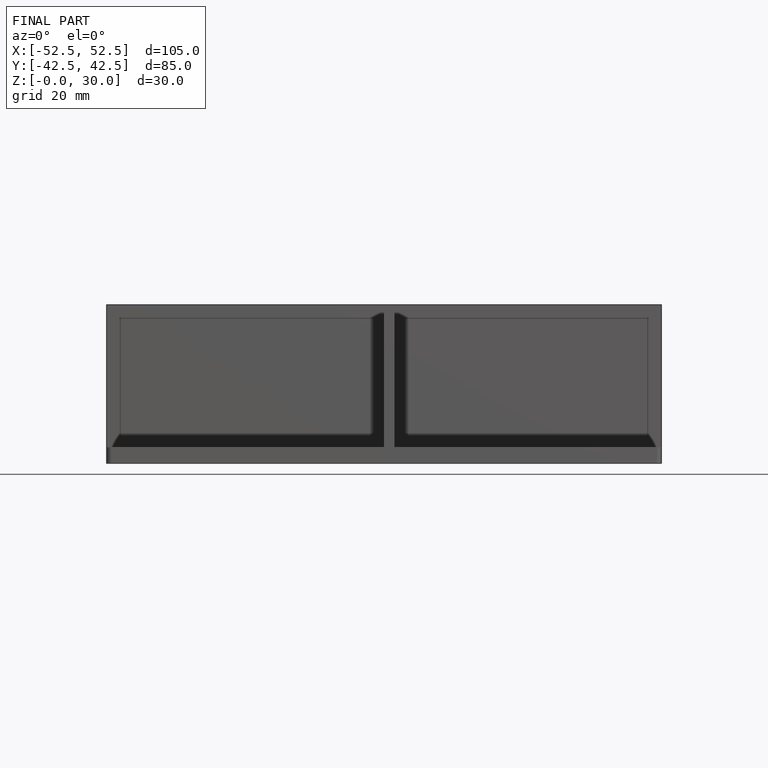
[diagram: finished part — front view with bounding-box wireframe]
